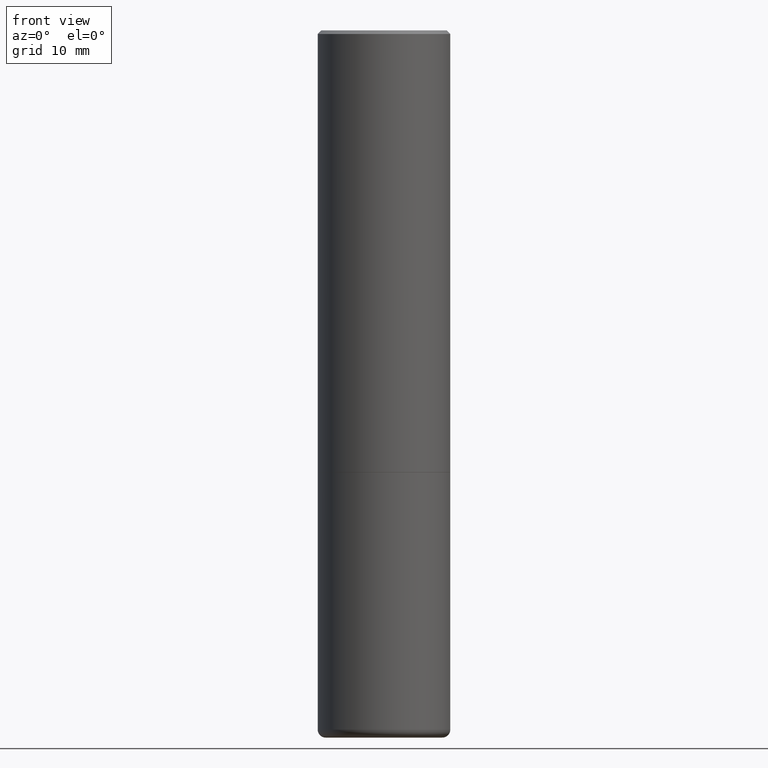
[diagram: clean part render]
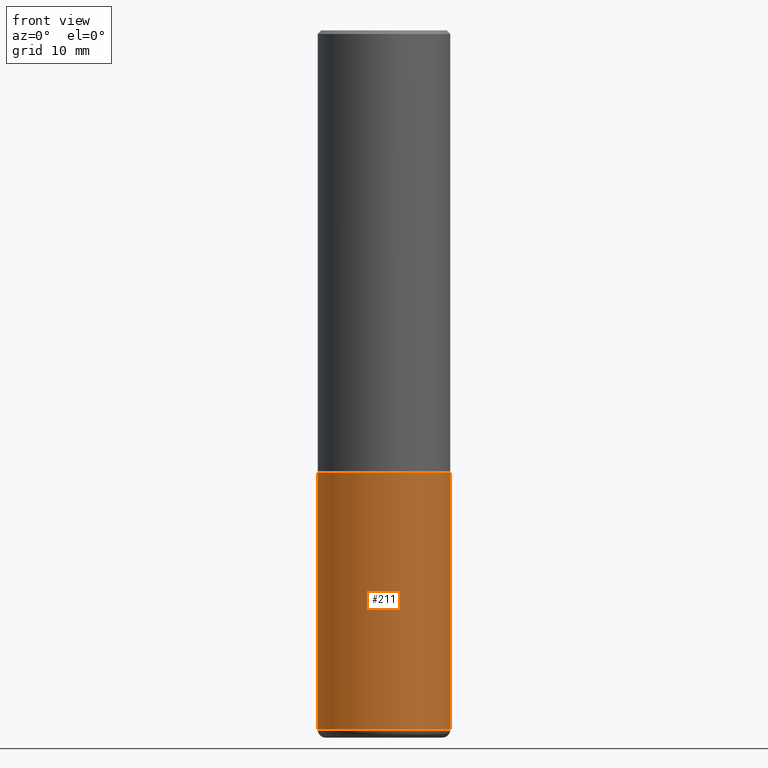
[diagram: same view with one face highlighted and labeled with its STEP entity id]
A machine part, front view. The second image highlights one B-rep face of the part: STEP entity #211.
In plain terms, the highlighted cylindrical surface (partial cylindrical patch) has radius 9.525 mm, axis along (-0, 0, 1).
Its self-contained STEP definition (entity closure, byte-faithful):
#11 = CARTESIAN_POINT ( 'NONE',  ( -0.3749999999999997780, -8.604328423477052173E-15, -3.955061670936044216 ) ) ;
#13 = CARTESIAN_POINT ( 'NONE',  ( -0.3750000000000000555, -8.604328423477050596E-15, -2.500000000000000000 ) ) ;
#19 = VERTEX_POINT ( 'NONE', #101 ) ;
#20 = EDGE_CURVE ( 'NONE', #19, #339, #170, .T. ) ;
#39 = DIRECTION ( 'NONE',  ( -2.445468806185136597E-29, 3.491481338843145583E-15, 1.000000000000000000 ) ) ;
#55 = ORIENTED_EDGE ( 'NONE', *, *, #410, .F. ) ;
#70 = VECTOR ( 'NONE', #306, 39.37007874015748143 ) ;
#86 = CIRCLE ( 'NONE', #351, 0.3749999999999997780 ) ;
#101 = CARTESIAN_POINT ( 'NONE',  ( 0.3749999999999997780, -1.642763502217933766E-14, -3.955061670936044216 ) ) ;
#103 = VERTEX_POINT ( 'NONE', #11 ) ;
#135 = EDGE_LOOP ( 'NONE', ( #189, #192, #196, #55 ) ) ;
#140 = DIRECTION ( 'NONE',  ( -2.445468806185136597E-29, 3.491481338843145583E-15, 1.000000000000000000 ) ) ;
#160 = AXIS2_PLACEMENT_3D ( 'NONE', #367, #140, #332 ) ;
#170 = LINE ( 'NONE', #231, #70 ) ;
#173 = EDGE_CURVE ( 'NONE', #103, #19, #86, .T. ) ;
#189 = ORIENTED_EDGE ( 'NONE', *, *, #421, .F. ) ;
#192 = ORIENTED_EDGE ( 'NONE', *, *, #173, .T. ) ;
#196 = ORIENTED_EDGE ( 'NONE', *, *, #20, .T. ) ;
#211 = ADVANCED_FACE ( 'NONE', ( #434 ), #403, .T. ) ;
#221 = CARTESIAN_POINT ( 'NONE',  ( 9.671979942812559398E-29, -1.380902401804698764E-14, -3.955061670936044216 ) ) ;
#225 = DIRECTION ( 'NONE',  ( -2.445468806185136877E-29, 3.491481338843145188E-15, 1.000000000000000000 ) ) ;
#231 = CARTESIAN_POINT ( 'NONE',  ( 0.3749999999999998890, -2.618611004132349228E-15, 1.828566290923475362E-29 ) ) ;
#241 = AXIS2_PLACEMENT_3D ( 'NONE', #275, #39, #326 ) ;
#275 = CARTESIAN_POINT ( 'NONE',  ( 6.113672015462842613E-29, -8.728703347107864943E-15, -2.500000000000000000 ) ) ;
#291 = DIRECTION ( 'NONE',  ( 1.000000000000000000, -6.982962677686266711E-15, 0.000000000000000000 ) ) ;
#300 = CARTESIAN_POINT ( 'NONE',  ( 0.3750000000000000555, -1.134731435124021338E-14, -2.500000000000000000 ) ) ;
#302 = CARTESIAN_POINT ( 'NONE',  ( -0.3749999999999998890, 2.664535259100374908E-15, -1.844600658845589038E-29 ) ) ;
#306 = DIRECTION ( 'NONE',  ( -2.445468806185136877E-29, 3.491481338843145188E-15, 1.000000000000000000 ) ) ;
#322 = DIRECTION ( 'NONE',  ( -2.445468806185136597E-29, 3.491481338843145583E-15, 1.000000000000000000 ) ) ;
#326 = DIRECTION ( 'NONE',  ( 1.000000000000000000, -6.982962677686264344E-15, 0.000000000000000000 ) ) ;
#332 = DIRECTION ( 'NONE',  ( 1.000000000000000000, -6.982962677686266711E-15, 4.876176775795935793E-29 ) ) ;
#339 = VERTEX_POINT ( 'NONE', #300 ) ;
#351 = AXIS2_PLACEMENT_3D ( 'NONE', #221, #322, #291 ) ;
#362 = CIRCLE ( 'NONE', #241, 0.3750000000000000555 ) ;
#366 = VERTEX_POINT ( 'NONE', #13 ) ;
#367 = CARTESIAN_POINT ( 'NONE',  ( 0.000000000000000000, 0.000000000000000000, 0.000000000000000000 ) ) ;
#372 = LINE ( 'NONE', #302, #419 ) ;
#403 = CYLINDRICAL_SURFACE ( 'NONE', #160, 0.3749999999999998890 ) ;
#410 = EDGE_CURVE ( 'NONE', #366, #339, #362, .T. ) ;
#419 = VECTOR ( 'NONE', #225, 39.37007874015748143 ) ;
#421 = EDGE_CURVE ( 'NONE', #103, #366, #372, .T. ) ;
#434 = FACE_OUTER_BOUND ( 'NONE', #135, .T. ) ;